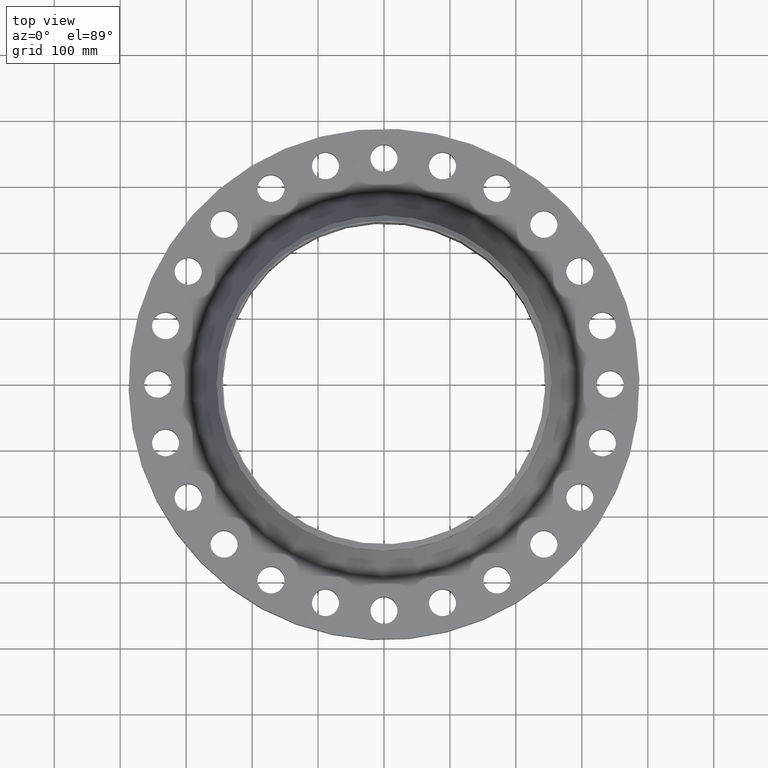
[diagram: clean part render]
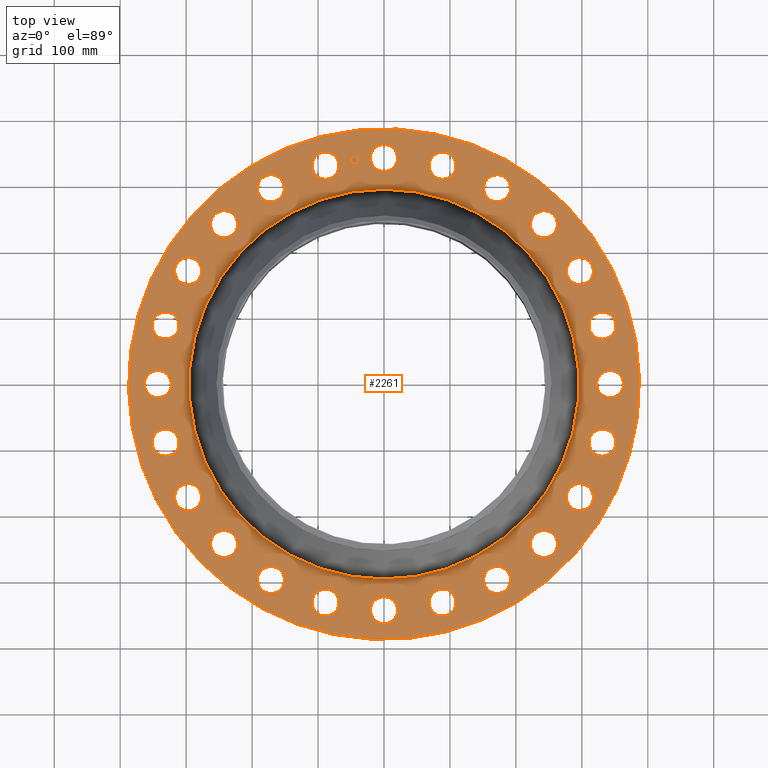
[diagram: same view with one face highlighted and labeled with its STEP entity id]
A machine part, top view. The second image highlights one B-rep face of the part: STEP entity #2261.
In plain terms, the highlighted planar face has unit normal (0, 0, -1).
Its self-contained STEP definition (entity closure, byte-faithful):
#65=AXIS2_PLACEMENT_3D('Circle Axis2P3D',#63,#64,$) ;
#82=AXIS2_PLACEMENT_3D('Circle Axis2P3D',#80,#81,$) ;
#115=AXIS2_PLACEMENT_3D('Circle Axis2P3D',#113,#114,$) ;
#139=AXIS2_PLACEMENT_3D('Circle Axis2P3D',#137,#138,$) ;
#156=AXIS2_PLACEMENT_3D('Circle Axis2P3D',#154,#155,$) ;
#191=AXIS2_PLACEMENT_3D('Circle Axis2P3D',#189,#190,$) ;
#934=AXIS2_PLACEMENT_3D('Circle Axis2P3D',#932,#933,$) ;
#946=AXIS2_PLACEMENT_3D('Circle Axis2P3D',#944,#945,$) ;
#977=AXIS2_PLACEMENT_3D('Circle Axis2P3D',#975,#976,$) ;
#989=AXIS2_PLACEMENT_3D('Circle Axis2P3D',#987,#988,$) ;
#1020=AXIS2_PLACEMENT_3D('Circle Axis2P3D',#1018,#1019,$) ;
#1032=AXIS2_PLACEMENT_3D('Circle Axis2P3D',#1030,#1031,$) ;
#1063=AXIS2_PLACEMENT_3D('Circle Axis2P3D',#1061,#1062,$) ;
#1075=AXIS2_PLACEMENT_3D('Circle Axis2P3D',#1073,#1074,$) ;
#1106=AXIS2_PLACEMENT_3D('Circle Axis2P3D',#1104,#1105,$) ;
#1118=AXIS2_PLACEMENT_3D('Circle Axis2P3D',#1116,#1117,$) ;
#1149=AXIS2_PLACEMENT_3D('Circle Axis2P3D',#1147,#1148,$) ;
#1161=AXIS2_PLACEMENT_3D('Circle Axis2P3D',#1159,#1160,$) ;
#1192=AXIS2_PLACEMENT_3D('Circle Axis2P3D',#1190,#1191,$) ;
#1204=AXIS2_PLACEMENT_3D('Circle Axis2P3D',#1202,#1203,$) ;
#1235=AXIS2_PLACEMENT_3D('Circle Axis2P3D',#1233,#1234,$) ;
#1247=AXIS2_PLACEMENT_3D('Circle Axis2P3D',#1245,#1246,$) ;
#1278=AXIS2_PLACEMENT_3D('Circle Axis2P3D',#1276,#1277,$) ;
#1290=AXIS2_PLACEMENT_3D('Circle Axis2P3D',#1288,#1289,$) ;
#1321=AXIS2_PLACEMENT_3D('Circle Axis2P3D',#1319,#1320,$) ;
#1333=AXIS2_PLACEMENT_3D('Circle Axis2P3D',#1331,#1332,$) ;
#1364=AXIS2_PLACEMENT_3D('Circle Axis2P3D',#1362,#1363,$) ;
#1376=AXIS2_PLACEMENT_3D('Circle Axis2P3D',#1374,#1375,$) ;
#1407=AXIS2_PLACEMENT_3D('Circle Axis2P3D',#1405,#1406,$) ;
#1419=AXIS2_PLACEMENT_3D('Circle Axis2P3D',#1417,#1418,$) ;
#1450=AXIS2_PLACEMENT_3D('Circle Axis2P3D',#1448,#1449,$) ;
#1462=AXIS2_PLACEMENT_3D('Circle Axis2P3D',#1460,#1461,$) ;
#1493=AXIS2_PLACEMENT_3D('Circle Axis2P3D',#1491,#1492,$) ;
#1505=AXIS2_PLACEMENT_3D('Circle Axis2P3D',#1503,#1504,$) ;
#1536=AXIS2_PLACEMENT_3D('Circle Axis2P3D',#1534,#1535,$) ;
#1548=AXIS2_PLACEMENT_3D('Circle Axis2P3D',#1546,#1547,$) ;
#1579=AXIS2_PLACEMENT_3D('Circle Axis2P3D',#1577,#1578,$) ;
#1591=AXIS2_PLACEMENT_3D('Circle Axis2P3D',#1589,#1590,$) ;
#1622=AXIS2_PLACEMENT_3D('Circle Axis2P3D',#1620,#1621,$) ;
#1634=AXIS2_PLACEMENT_3D('Circle Axis2P3D',#1632,#1633,$) ;
#1665=AXIS2_PLACEMENT_3D('Circle Axis2P3D',#1663,#1664,$) ;
#1677=AXIS2_PLACEMENT_3D('Circle Axis2P3D',#1675,#1676,$) ;
#1708=AXIS2_PLACEMENT_3D('Circle Axis2P3D',#1706,#1707,$) ;
#1720=AXIS2_PLACEMENT_3D('Circle Axis2P3D',#1718,#1719,$) ;
#1751=AXIS2_PLACEMENT_3D('Circle Axis2P3D',#1749,#1750,$) ;
#1763=AXIS2_PLACEMENT_3D('Circle Axis2P3D',#1761,#1762,$) ;
#1794=AXIS2_PLACEMENT_3D('Circle Axis2P3D',#1792,#1793,$) ;
#1806=AXIS2_PLACEMENT_3D('Circle Axis2P3D',#1804,#1805,$) ;
#1837=AXIS2_PLACEMENT_3D('Circle Axis2P3D',#1835,#1836,$) ;
#1849=AXIS2_PLACEMENT_3D('Circle Axis2P3D',#1847,#1848,$) ;
#1880=AXIS2_PLACEMENT_3D('Circle Axis2P3D',#1878,#1879,$) ;
#1892=AXIS2_PLACEMENT_3D('Circle Axis2P3D',#1890,#1891,$) ;
#2137=AXIS2_PLACEMENT_3D('Plane Axis2P3D',#2134,#2135,#2136) ;
#2245=AXIS2_PLACEMENT_3D('Circle Axis2P3D',#2243,#2244,$) ;
#2254=AXIS2_PLACEMENT_3D('Circle Axis2P3D',#2252,#2253,$) ;
#46=CARTESIAN_POINT('Vertex',(-0.710841875134,13.8883346863,2.75000000001)) ;
#60=CARTESIAN_POINT('Vertex',(0.710841875134,13.1116653138,2.75000000001)) ;
#63=CARTESIAN_POINT('Axis2P3D Location',(0.,13.5000000001,2.75000000001)) ;
#80=CARTESIAN_POINT('Axis2P3D Location',(0.,13.5000000001,2.75000000001)) ;
#110=CARTESIAN_POINT('Vertex',(-7.31123946374,-13.3831340689,2.75000000001)) ;
#113=CARTESIAN_POINT('Axis2P3D Location',(0.,0.,2.75000000001)) ;
#117=CARTESIAN_POINT('Vertex',(7.31123946374,13.3831340689,2.75000000001)) ;
#137=CARTESIAN_POINT('Axis2P3D Location',(0.,0.,2.75000000001)) ;
#154=CARTESIAN_POINT('Axis2P3D Location',(0.,0.,2.75000000001)) ;
#158=CARTESIAN_POINT('Vertex',(5.57908952298,10.2124548701,2.75000000001)) ;
#160=CARTESIAN_POINT('Vertex',(-5.57908952298,-10.2124548701,2.75000000001)) ;
#189=CARTESIAN_POINT('Axis2P3D Location',(0.,0.,2.75000000001)) ;
#922=CARTESIAN_POINT('Vertex',(-2.90794499598,-13.599080573,2.75000000001)) ;
#929=CARTESIAN_POINT('Vertex',(-4.08016922182,-12.4809167369,2.75000000001)) ;
#932=CARTESIAN_POINT('Axis2P3D Location',(-3.4940571089,-13.039998655,2.75000000001)) ;
#944=CARTESIAN_POINT('Axis2P3D Location',(-3.4940571089,-13.039998655,2.75000000001)) ;
#965=CARTESIAN_POINT('Vertex',(6.32856022122,12.3830715922,2.75000000001)) ;
#972=CARTESIAN_POINT('Vertex',(7.17143977883,10.9996143101,2.75000000001)) ;
#975=CARTESIAN_POINT('Axis2P3D Location',(6.75000000003,11.6913429511,2.75000000001)) ;
#987=CARTESIAN_POINT('Axis2P3D Location',(6.75000000003,11.6913429511,2.75000000001)) ;
#1008=CARTESIAN_POINT('Vertex',(-6.32856022122,-12.3830715922,2.75000000001)) ;
#1015=CARTESIAN_POINT('Vertex',(-7.17143977883,-10.9996143101,2.75000000001)) ;
#1018=CARTESIAN_POINT('Axis2P3D Location',(-6.75000000003,-11.6913429511,2.75000000001)) ;
#1030=CARTESIAN_POINT('Axis2P3D Location',(-6.75000000003,-11.6913429511,2.75000000001)) ;
#1051=CARTESIAN_POINT('Vertex',(9.31789452583,10.3231767463,2.75000000001)) ;
#1058=CARTESIAN_POINT('Vertex',(9.77398856628,8.76870634577,2.75000000001)) ;
#1061=CARTESIAN_POINT('Axis2P3D Location',(9.54594154606,9.54594154606,2.75000000001)) ;
#1073=CARTESIAN_POINT('Axis2P3D Location',(9.54594154606,9.54594154606,2.75000000001)) ;
#1094=CARTESIAN_POINT('Vertex',(-9.31789452583,-10.3231767463,2.75000000001)) ;
#1101=CARTESIAN_POINT('Vertex',(-9.77398856628,-8.76870634577,2.75000000001)) ;
#1104=CARTESIAN_POINT('Axis2P3D Location',(-9.54594154606,-9.54594154606,2.75000000001)) ;
#1116=CARTESIAN_POINT('Axis2P3D Location',(-9.54594154606,-9.54594154606,2.75000000001)) ;
#1137=CARTESIAN_POINT('Vertex',(11.6722297171,7.5597744651,2.75000000001)) ;
#1144=CARTESIAN_POINT('Vertex',(11.7104561852,5.94022553495,2.75000000001)) ;
#1147=CARTESIAN_POINT('Axis2P3D Location',(11.6913429511,6.75000000003,2.75000000001)) ;
#1159=CARTESIAN_POINT('Axis2P3D Location',(11.6913429511,6.75000000003,2.75000000001)) ;
#1180=CARTESIAN_POINT('Vertex',(-11.6722297171,-7.5597744651,2.75000000001)) ;
#1187=CARTESIAN_POINT('Vertex',(-11.7104561852,-5.94022553495,2.75000000001)) ;
#1190=CARTESIAN_POINT('Axis2P3D Location',(-11.6913429511,-6.75000000003,2.75000000001)) ;
#1202=CARTESIAN_POINT('Axis2P3D Location',(-11.6913429511,-6.75000000003,2.75000000001)) ;
#1223=CARTESIAN_POINT('Vertex',(13.2311217423,4.28118604718,2.75000000001)) ;
#1230=CARTESIAN_POINT('Vertex',(12.8488755676,2.70692817062,2.75000000001)) ;
#1233=CARTESIAN_POINT('Axis2P3D Location',(13.039998655,3.4940571089,2.75000000001)) ;
#1245=CARTESIAN_POINT('Axis2P3D Location',(13.039998655,3.4940571089,2.75000000001)) ;
#1266=CARTESIAN_POINT('Vertex',(-13.2311217423,-4.28118604718,2.75000000001)) ;
#1273=CARTESIAN_POINT('Vertex',(-12.8488755676,-2.70692817062,2.75000000001)) ;
#1276=CARTESIAN_POINT('Axis2P3D Location',(-13.039998655,-3.4940571089,2.75000000001)) ;
#1288=CARTESIAN_POINT('Axis2P3D Location',(-13.039998655,-3.4940571089,2.75000000001)) ;
#1309=CARTESIAN_POINT('Vertex',(13.8883346863,0.710841875134,2.75000000001)) ;
#1316=CARTESIAN_POINT('Vertex',(13.1116653138,-0.710841875134,2.75000000001)) ;
#1319=CARTESIAN_POINT('Axis2P3D Location',(13.5000000001,-1.41129328698E-015,2.75000000001)) ;
#1331=CARTESIAN_POINT('Axis2P3D Location',(13.5000000001,-1.41129328698E-015,2.75000000001)) ;
#1352=CARTESIAN_POINT('Vertex',(-13.8883346863,-0.710841875134,2.75000000001)) ;
#1359=CARTESIAN_POINT('Vertex',(-13.1116653138,0.710841875134,2.75000000001)) ;
#1362=CARTESIAN_POINT('Axis2P3D Location',(-13.5000000001,-2.47990976828E-015,2.75000000001)) ;
#1374=CARTESIAN_POINT('Axis2P3D Location',(-13.5000000001,-2.47990976828E-015,2.75000000001)) ;
#1395=CARTESIAN_POINT('Vertex',(13.599080573,-2.90794499598,2.75000000001)) ;
#1402=CARTESIAN_POINT('Vertex',(12.4809167369,-4.08016922182,2.75000000001)) ;
#1405=CARTESIAN_POINT('Axis2P3D Location',(13.039998655,-3.4940571089,2.75000000001)) ;
#1417=CARTESIAN_POINT('Axis2P3D Location',(13.039998655,-3.4940571089,2.75000000001)) ;
#1438=CARTESIAN_POINT('Vertex',(-13.599080573,2.90794499598,2.75000000001)) ;
#1445=CARTESIAN_POINT('Vertex',(-12.4809167369,4.08016922182,2.75000000001)) ;
#1448=CARTESIAN_POINT('Axis2P3D Location',(-13.039998655,3.4940571089,2.75000000001)) ;
#1460=CARTESIAN_POINT('Axis2P3D Location',(-13.039998655,3.4940571089,2.75000000001)) ;
#1481=CARTESIAN_POINT('Vertex',(12.3830715922,-6.32856022122,2.75000000001)) ;
#1488=CARTESIAN_POINT('Vertex',(10.9996143101,-7.17143977883,2.75000000001)) ;
#1491=CARTESIAN_POINT('Axis2P3D Location',(11.6913429511,-6.75000000003,2.75000000001)) ;
#1503=CARTESIAN_POINT('Axis2P3D Location',(11.6913429511,-6.75000000003,2.75000000001)) ;
#1524=CARTESIAN_POINT('Vertex',(-12.3830715922,6.32856022122,2.75000000001)) ;
#1531=CARTESIAN_POINT('Vertex',(-10.9996143101,7.17143977883,2.75000000001)) ;
#1534=CARTESIAN_POINT('Axis2P3D Location',(-11.6913429511,6.75000000003,2.75000000001)) ;
#1546=CARTESIAN_POINT('Axis2P3D Location',(-11.6913429511,6.75000000003,2.75000000001)) ;
#1567=CARTESIAN_POINT('Vertex',(10.3231767463,-9.31789452583,2.75000000001)) ;
#1574=CARTESIAN_POINT('Vertex',(8.76870634577,-9.77398856628,2.75000000001)) ;
#1577=CARTESIAN_POINT('Axis2P3D Location',(9.54594154606,-9.54594154606,2.75000000001)) ;
#1589=CARTESIAN_POINT('Axis2P3D Location',(9.54594154606,-9.54594154606,2.75000000001)) ;
#1610=CARTESIAN_POINT('Vertex',(-10.3231767463,9.31789452583,2.75000000001)) ;
#1617=CARTESIAN_POINT('Vertex',(-8.76870634577,9.77398856628,2.75000000001)) ;
#1620=CARTESIAN_POINT('Axis2P3D Location',(-9.54594154606,9.54594154606,2.75000000001)) ;
#1632=CARTESIAN_POINT('Axis2P3D Location',(-9.54594154606,9.54594154606,2.75000000001)) ;
#1653=CARTESIAN_POINT('Vertex',(7.5597744651,-11.6722297171,2.75000000001)) ;
#1660=CARTESIAN_POINT('Vertex',(5.94022553495,-11.7104561852,2.75000000001)) ;
#1663=CARTESIAN_POINT('Axis2P3D Location',(6.75000000003,-11.6913429511,2.75000000001)) ;
#1675=CARTESIAN_POINT('Axis2P3D Location',(6.75000000003,-11.6913429511,2.75000000001)) ;
#1696=CARTESIAN_POINT('Vertex',(-7.5597744651,11.6722297171,2.75000000001)) ;
#1703=CARTESIAN_POINT('Vertex',(-5.94022553495,11.7104561852,2.75000000001)) ;
#1706=CARTESIAN_POINT('Axis2P3D Location',(-6.75000000003,11.6913429511,2.75000000001)) ;
#1718=CARTESIAN_POINT('Axis2P3D Location',(-6.75000000003,11.6913429511,2.75000000001)) ;
#1739=CARTESIAN_POINT('Vertex',(4.28118604718,-13.2311217423,2.75000000001)) ;
#1746=CARTESIAN_POINT('Vertex',(2.70692817062,-12.8488755676,2.75000000001)) ;
#1749=CARTESIAN_POINT('Axis2P3D Location',(3.4940571089,-13.039998655,2.75000000001)) ;
#1761=CARTESIAN_POINT('Axis2P3D Location',(3.4940571089,-13.039998655,2.75000000001)) ;
#1782=CARTESIAN_POINT('Vertex',(-4.28118604718,13.2311217423,2.75000000001)) ;
#1789=CARTESIAN_POINT('Vertex',(-2.70692817062,12.8488755676,2.75000000001)) ;
#1792=CARTESIAN_POINT('Axis2P3D Location',(-3.4940571089,13.039998655,2.75000000001)) ;
#1804=CARTESIAN_POINT('Axis2P3D Location',(-3.4940571089,13.039998655,2.75000000001)) ;
#1825=CARTESIAN_POINT('Vertex',(0.710841875134,-13.8883346863,2.75000000001)) ;
#1832=CARTESIAN_POINT('Vertex',(-0.710841875134,-13.1116653138,2.75000000001)) ;
#1835=CARTESIAN_POINT('Axis2P3D Location',(1.65327317886E-015,-13.5000000001,2.75000000001)) ;
#1847=CARTESIAN_POINT('Axis2P3D Location',(1.65327317886E-015,-13.5000000001,2.75000000001)) ;
#1868=CARTESIAN_POINT('Vertex',(2.90794499598,13.599080573,2.75000000001)) ;
#1875=CARTESIAN_POINT('Vertex',(4.08016922182,12.4809167369,2.75000000001)) ;
#1878=CARTESIAN_POINT('Axis2P3D Location',(3.4940571089,13.039998655,2.75000000001)) ;
#1890=CARTESIAN_POINT('Axis2P3D Location',(3.4940571089,13.039998655,2.75000000001)) ;
#2134=CARTESIAN_POINT('Axis2P3D Location',(0.,15.2500000001,2.75000000001)) ;
#2243=CARTESIAN_POINT('Axis2P3D Location',(-1.76210359498,13.3845056286,2.75000000001)) ;
#2247=CARTESIAN_POINT('Vertex',(-2.00748619817,13.352200396,2.75000000001)) ;
#2249=CARTESIAN_POINT('Vertex',(-1.51672099179,13.4168108612,2.75000000001)) ;
#2252=CARTESIAN_POINT('Axis2P3D Location',(-1.76210359498,13.3845056286,2.75000000001)) ;
#64=DIRECTION('Axis2P3D Direction',(0.,-0.,-0.0393700787402)) ;
#81=DIRECTION('Axis2P3D Direction',(0.,-0.,-0.0393700787402)) ;
#114=DIRECTION('Axis2P3D Direction',(0.,0.,-0.0393700787402)) ;
#138=DIRECTION('Axis2P3D Direction',(0.,0.,-0.0393700787402)) ;
#155=DIRECTION('Axis2P3D Direction',(0.,0.,-0.0393700787402)) ;
#190=DIRECTION('Axis2P3D Direction',(0.,0.,-0.0393700787402)) ;
#933=DIRECTION('Axis2P3D Direction',(0.,0.,-0.0393700787402)) ;
#945=DIRECTION('Axis2P3D Direction',(0.,0.,-0.0393700787402)) ;
#976=DIRECTION('Axis2P3D Direction',(0.,-0.,-0.0393700787402)) ;
#988=DIRECTION('Axis2P3D Direction',(0.,-0.,-0.0393700787402)) ;
#1019=DIRECTION('Axis2P3D Direction',(0.,0.,-0.0393700787402)) ;
#1031=DIRECTION('Axis2P3D Direction',(0.,0.,-0.0393700787402)) ;
#1062=DIRECTION('Axis2P3D Direction',(0.,-0.,-0.0393700787402)) ;
#1074=DIRECTION('Axis2P3D Direction',(0.,-0.,-0.0393700787402)) ;
#1105=DIRECTION('Axis2P3D Direction',(0.,0.,-0.0393700787402)) ;
#1117=DIRECTION('Axis2P3D Direction',(0.,0.,-0.0393700787402)) ;
#1148=DIRECTION('Axis2P3D Direction',(0.,-0.,-0.0393700787402)) ;
#1160=DIRECTION('Axis2P3D Direction',(0.,-0.,-0.0393700787402)) ;
#1191=DIRECTION('Axis2P3D Direction',(0.,0.,-0.0393700787402)) ;
#1203=DIRECTION('Axis2P3D Direction',(0.,0.,-0.0393700787402)) ;
#1234=DIRECTION('Axis2P3D Direction',(0.,-0.,-0.0393700787402)) ;
#1246=DIRECTION('Axis2P3D Direction',(0.,-0.,-0.0393700787402)) ;
#1277=DIRECTION('Axis2P3D Direction',(0.,0.,-0.0393700787402)) ;
#1289=DIRECTION('Axis2P3D Direction',(0.,0.,-0.0393700787402)) ;
#1320=DIRECTION('Axis2P3D Direction',(0.,-0.,-0.0393700787402)) ;
#1332=DIRECTION('Axis2P3D Direction',(0.,-0.,-0.0393700787402)) ;
#1363=DIRECTION('Axis2P3D Direction',(0.,0.,-0.0393700787402)) ;
#1375=DIRECTION('Axis2P3D Direction',(0.,0.,-0.0393700787402)) ;
#1406=DIRECTION('Axis2P3D Direction',(-0.,0.,-0.0393700787402)) ;
#1418=DIRECTION('Axis2P3D Direction',(-0.,0.,-0.0393700787402)) ;
#1449=DIRECTION('Axis2P3D Direction',(0.,0.,-0.0393700787402)) ;
#1461=DIRECTION('Axis2P3D Direction',(0.,0.,-0.0393700787402)) ;
#1492=DIRECTION('Axis2P3D Direction',(-0.,0.,-0.0393700787402)) ;
#1504=DIRECTION('Axis2P3D Direction',(-0.,0.,-0.0393700787402)) ;
#1535=DIRECTION('Axis2P3D Direction',(0.,0.,-0.0393700787402)) ;
#1547=DIRECTION('Axis2P3D Direction',(0.,0.,-0.0393700787402)) ;
#1578=DIRECTION('Axis2P3D Direction',(-0.,0.,-0.0393700787402)) ;
#1590=DIRECTION('Axis2P3D Direction',(-0.,0.,-0.0393700787402)) ;
#1621=DIRECTION('Axis2P3D Direction',(0.,0.,-0.0393700787402)) ;
#1633=DIRECTION('Axis2P3D Direction',(0.,0.,-0.0393700787402)) ;
#1664=DIRECTION('Axis2P3D Direction',(-0.,0.,-0.0393700787402)) ;
#1676=DIRECTION('Axis2P3D Direction',(-0.,0.,-0.0393700787402)) ;
#1707=DIRECTION('Axis2P3D Direction',(0.,0.,-0.0393700787402)) ;
#1719=DIRECTION('Axis2P3D Direction',(0.,0.,-0.0393700787402)) ;
#1750=DIRECTION('Axis2P3D Direction',(-0.,0.,-0.0393700787402)) ;
#1762=DIRECTION('Axis2P3D Direction',(-0.,0.,-0.0393700787402)) ;
#1793=DIRECTION('Axis2P3D Direction',(0.,0.,-0.0393700787402)) ;
#1805=DIRECTION('Axis2P3D Direction',(0.,0.,-0.0393700787402)) ;
#1836=DIRECTION('Axis2P3D Direction',(-0.,0.,-0.0393700787402)) ;
#1848=DIRECTION('Axis2P3D Direction',(-0.,0.,-0.0393700787402)) ;
#1879=DIRECTION('Axis2P3D Direction',(0.,-0.,-0.0393700787402)) ;
#1891=DIRECTION('Axis2P3D Direction',(0.,-0.,-0.0393700787402)) ;
#2135=DIRECTION('Axis2P3D Direction',(0.,0.,-0.0393700787402)) ;
#2136=DIRECTION('Axis2P3D XDirection',(0.0393700787402,0.,0.)) ;
#2244=DIRECTION('Axis2P3D Direction',(0.,0.,-0.0393700787402)) ;
#2253=DIRECTION('Axis2P3D Direction',(0.,0.,-0.0393700787402)) ;
#2140=ORIENTED_EDGE('',*,*,#141,.F.) ;
#2141=ORIENTED_EDGE('',*,*,#119,.F.) ;
#2144=ORIENTED_EDGE('',*,*,#67,.T.) ;
#2145=ORIENTED_EDGE('',*,*,#84,.T.) ;
#2148=ORIENTED_EDGE('',*,*,#193,.T.) ;
#2149=ORIENTED_EDGE('',*,*,#162,.T.) ;
#2152=ORIENTED_EDGE('',*,*,#1894,.T.) ;
#2153=ORIENTED_EDGE('',*,*,#1882,.T.) ;
#2156=ORIENTED_EDGE('',*,*,#991,.T.) ;
#2157=ORIENTED_EDGE('',*,*,#979,.T.) ;
#2160=ORIENTED_EDGE('',*,*,#1077,.T.) ;
#2161=ORIENTED_EDGE('',*,*,#1065,.T.) ;
#2164=ORIENTED_EDGE('',*,*,#1163,.T.) ;
#2165=ORIENTED_EDGE('',*,*,#1151,.T.) ;
#2168=ORIENTED_EDGE('',*,*,#1249,.T.) ;
#2169=ORIENTED_EDGE('',*,*,#1237,.T.) ;
#2172=ORIENTED_EDGE('',*,*,#1335,.T.) ;
#2173=ORIENTED_EDGE('',*,*,#1323,.T.) ;
#2176=ORIENTED_EDGE('',*,*,#1421,.T.) ;
#2177=ORIENTED_EDGE('',*,*,#1409,.T.) ;
#2180=ORIENTED_EDGE('',*,*,#1507,.T.) ;
#2181=ORIENTED_EDGE('',*,*,#1495,.T.) ;
#2184=ORIENTED_EDGE('',*,*,#1593,.T.) ;
#2185=ORIENTED_EDGE('',*,*,#1581,.T.) ;
#2188=ORIENTED_EDGE('',*,*,#1679,.T.) ;
#2189=ORIENTED_EDGE('',*,*,#1667,.T.) ;
#2192=ORIENTED_EDGE('',*,*,#1765,.T.) ;
#2193=ORIENTED_EDGE('',*,*,#1753,.T.) ;
#2196=ORIENTED_EDGE('',*,*,#1851,.T.) ;
#2197=ORIENTED_EDGE('',*,*,#1839,.T.) ;
#2200=ORIENTED_EDGE('',*,*,#948,.T.) ;
#2201=ORIENTED_EDGE('',*,*,#936,.T.) ;
#2204=ORIENTED_EDGE('',*,*,#1034,.T.) ;
#2205=ORIENTED_EDGE('',*,*,#1022,.T.) ;
#2208=ORIENTED_EDGE('',*,*,#1120,.T.) ;
#2209=ORIENTED_EDGE('',*,*,#1108,.T.) ;
#2212=ORIENTED_EDGE('',*,*,#1206,.T.) ;
#2213=ORIENTED_EDGE('',*,*,#1194,.T.) ;
#2216=ORIENTED_EDGE('',*,*,#1292,.T.) ;
#2217=ORIENTED_EDGE('',*,*,#1280,.T.) ;
#2220=ORIENTED_EDGE('',*,*,#1378,.T.) ;
#2221=ORIENTED_EDGE('',*,*,#1366,.T.) ;
#2224=ORIENTED_EDGE('',*,*,#1464,.T.) ;
#2225=ORIENTED_EDGE('',*,*,#1452,.T.) ;
#2228=ORIENTED_EDGE('',*,*,#1550,.T.) ;
#2229=ORIENTED_EDGE('',*,*,#1538,.T.) ;
#2232=ORIENTED_EDGE('',*,*,#1636,.T.) ;
#2233=ORIENTED_EDGE('',*,*,#1624,.T.) ;
#2236=ORIENTED_EDGE('',*,*,#1722,.T.) ;
#2237=ORIENTED_EDGE('',*,*,#1710,.T.) ;
#2240=ORIENTED_EDGE('',*,*,#1808,.T.) ;
#2241=ORIENTED_EDGE('',*,*,#1796,.T.) ;
#2258=ORIENTED_EDGE('',*,*,#2251,.T.) ;
#2259=ORIENTED_EDGE('',*,*,#2256,.T.) ;
#2146=FACE_BOUND('',#2143,.T.) ;
#2150=FACE_BOUND('',#2147,.T.) ;
#2154=FACE_BOUND('',#2151,.T.) ;
#2158=FACE_BOUND('',#2155,.T.) ;
#2162=FACE_BOUND('',#2159,.T.) ;
#2166=FACE_BOUND('',#2163,.T.) ;
#2170=FACE_BOUND('',#2167,.T.) ;
#2174=FACE_BOUND('',#2171,.T.) ;
#2178=FACE_BOUND('',#2175,.T.) ;
#2182=FACE_BOUND('',#2179,.T.) ;
#2186=FACE_BOUND('',#2183,.T.) ;
#2190=FACE_BOUND('',#2187,.T.) ;
#2194=FACE_BOUND('',#2191,.T.) ;
#2198=FACE_BOUND('',#2195,.T.) ;
#2202=FACE_BOUND('',#2199,.T.) ;
#2206=FACE_BOUND('',#2203,.T.) ;
#2210=FACE_BOUND('',#2207,.T.) ;
#2214=FACE_BOUND('',#2211,.T.) ;
#2218=FACE_BOUND('',#2215,.T.) ;
#2222=FACE_BOUND('',#2219,.T.) ;
#2226=FACE_BOUND('',#2223,.T.) ;
#2230=FACE_BOUND('',#2227,.T.) ;
#2234=FACE_BOUND('',#2231,.T.) ;
#2238=FACE_BOUND('',#2235,.T.) ;
#2242=FACE_BOUND('',#2239,.T.) ;
#2260=FACE_BOUND('',#2257,.T.) ;
#2261=ADVANCED_FACE('PartBody',(#2142,#2146,#2150,#2154,#2158,#2162,#2166,#2170,#2174,#2178,#2182,#2186,#2190,#2194,#2198,#2202,#2206,#2210,#2214,#2218,#2222,#2226,#2230,#2234,#2238,#2242,#2260),#2138,.F.) ;
#66=CIRCLE('generated circle',#65,0.810000000003) ;
#83=CIRCLE('generated circle',#82,0.810000000003) ;
#116=CIRCLE('generated circle',#115,15.2500000001) ;
#140=CIRCLE('generated circle',#139,15.2500000001) ;
#157=CIRCLE('generated circle',#156,11.6370303076) ;
#192=CIRCLE('generated circle',#191,11.6370303076) ;
#935=CIRCLE('generated circle',#934,0.810000000003) ;
#947=CIRCLE('generated circle',#946,0.810000000003) ;
#978=CIRCLE('generated circle',#977,0.810000000003) ;
#990=CIRCLE('generated circle',#989,0.810000000003) ;
#1021=CIRCLE('generated circle',#1020,0.810000000003) ;
#1033=CIRCLE('generated circle',#1032,0.810000000003) ;
#1064=CIRCLE('generated circle',#1063,0.810000000003) ;
#1076=CIRCLE('generated circle',#1075,0.810000000003) ;
#1107=CIRCLE('generated circle',#1106,0.810000000003) ;
#1119=CIRCLE('generated circle',#1118,0.810000000003) ;
#1150=CIRCLE('generated circle',#1149,0.810000000003) ;
#1162=CIRCLE('generated circle',#1161,0.810000000003) ;
#1193=CIRCLE('generated circle',#1192,0.810000000003) ;
#1205=CIRCLE('generated circle',#1204,0.810000000003) ;
#1236=CIRCLE('generated circle',#1235,0.810000000003) ;
#1248=CIRCLE('generated circle',#1247,0.810000000003) ;
#1279=CIRCLE('generated circle',#1278,0.810000000003) ;
#1291=CIRCLE('generated circle',#1290,0.810000000003) ;
#1322=CIRCLE('generated circle',#1321,0.810000000003) ;
#1334=CIRCLE('generated circle',#1333,0.810000000003) ;
#1365=CIRCLE('generated circle',#1364,0.810000000003) ;
#1377=CIRCLE('generated circle',#1376,0.810000000003) ;
#1408=CIRCLE('generated circle',#1407,0.810000000003) ;
#1420=CIRCLE('generated circle',#1419,0.810000000003) ;
#1451=CIRCLE('generated circle',#1450,0.810000000003) ;
#1463=CIRCLE('generated circle',#1462,0.810000000003) ;
#1494=CIRCLE('generated circle',#1493,0.810000000003) ;
#1506=CIRCLE('generated circle',#1505,0.810000000003) ;
#1537=CIRCLE('generated circle',#1536,0.810000000003) ;
#1549=CIRCLE('generated circle',#1548,0.810000000003) ;
#1580=CIRCLE('generated circle',#1579,0.810000000003) ;
#1592=CIRCLE('generated circle',#1591,0.810000000003) ;
#1623=CIRCLE('generated circle',#1622,0.810000000003) ;
#1635=CIRCLE('generated circle',#1634,0.810000000003) ;
#1666=CIRCLE('generated circle',#1665,0.810000000003) ;
#1678=CIRCLE('generated circle',#1677,0.810000000003) ;
#1709=CIRCLE('generated circle',#1708,0.810000000003) ;
#1721=CIRCLE('generated circle',#1720,0.810000000003) ;
#1752=CIRCLE('generated circle',#1751,0.810000000003) ;
#1764=CIRCLE('generated circle',#1763,0.810000000003) ;
#1795=CIRCLE('generated circle',#1794,0.810000000003) ;
#1807=CIRCLE('generated circle',#1806,0.810000000003) ;
#1838=CIRCLE('generated circle',#1837,0.810000000003) ;
#1850=CIRCLE('generated circle',#1849,0.810000000003) ;
#1881=CIRCLE('generated circle',#1880,0.810000000003) ;
#1893=CIRCLE('generated circle',#1892,0.810000000003) ;
#2246=CIRCLE('generated circle',#2245,0.247500000001) ;
#2255=CIRCLE('generated circle',#2254,0.247500000001) ;
#67=EDGE_CURVE('',#47,#61,#66,.T.) ;
#84=EDGE_CURVE('',#61,#47,#83,.T.) ;
#119=EDGE_CURVE('',#111,#118,#116,.T.) ;
#141=EDGE_CURVE('',#118,#111,#140,.T.) ;
#162=EDGE_CURVE('',#159,#161,#157,.T.) ;
#193=EDGE_CURVE('',#161,#159,#192,.T.) ;
#936=EDGE_CURVE('',#923,#930,#935,.T.) ;
#948=EDGE_CURVE('',#930,#923,#947,.T.) ;
#979=EDGE_CURVE('',#966,#973,#978,.T.) ;
#991=EDGE_CURVE('',#973,#966,#990,.T.) ;
#1022=EDGE_CURVE('',#1009,#1016,#1021,.T.) ;
#1034=EDGE_CURVE('',#1016,#1009,#1033,.T.) ;
#1065=EDGE_CURVE('',#1052,#1059,#1064,.T.) ;
#1077=EDGE_CURVE('',#1059,#1052,#1076,.T.) ;
#1108=EDGE_CURVE('',#1095,#1102,#1107,.T.) ;
#1120=EDGE_CURVE('',#1102,#1095,#1119,.T.) ;
#1151=EDGE_CURVE('',#1138,#1145,#1150,.T.) ;
#1163=EDGE_CURVE('',#1145,#1138,#1162,.T.) ;
#1194=EDGE_CURVE('',#1181,#1188,#1193,.T.) ;
#1206=EDGE_CURVE('',#1188,#1181,#1205,.T.) ;
#1237=EDGE_CURVE('',#1224,#1231,#1236,.T.) ;
#1249=EDGE_CURVE('',#1231,#1224,#1248,.T.) ;
#1280=EDGE_CURVE('',#1267,#1274,#1279,.T.) ;
#1292=EDGE_CURVE('',#1274,#1267,#1291,.T.) ;
#1323=EDGE_CURVE('',#1310,#1317,#1322,.T.) ;
#1335=EDGE_CURVE('',#1317,#1310,#1334,.T.) ;
#1366=EDGE_CURVE('',#1353,#1360,#1365,.T.) ;
#1378=EDGE_CURVE('',#1360,#1353,#1377,.T.) ;
#1409=EDGE_CURVE('',#1396,#1403,#1408,.T.) ;
#1421=EDGE_CURVE('',#1403,#1396,#1420,.T.) ;
#1452=EDGE_CURVE('',#1439,#1446,#1451,.T.) ;
#1464=EDGE_CURVE('',#1446,#1439,#1463,.T.) ;
#1495=EDGE_CURVE('',#1482,#1489,#1494,.T.) ;
#1507=EDGE_CURVE('',#1489,#1482,#1506,.T.) ;
#1538=EDGE_CURVE('',#1525,#1532,#1537,.T.) ;
#1550=EDGE_CURVE('',#1532,#1525,#1549,.T.) ;
#1581=EDGE_CURVE('',#1568,#1575,#1580,.T.) ;
#1593=EDGE_CURVE('',#1575,#1568,#1592,.T.) ;
#1624=EDGE_CURVE('',#1611,#1618,#1623,.T.) ;
#1636=EDGE_CURVE('',#1618,#1611,#1635,.T.) ;
#1667=EDGE_CURVE('',#1654,#1661,#1666,.T.) ;
#1679=EDGE_CURVE('',#1661,#1654,#1678,.T.) ;
#1710=EDGE_CURVE('',#1697,#1704,#1709,.T.) ;
#1722=EDGE_CURVE('',#1704,#1697,#1721,.T.) ;
#1753=EDGE_CURVE('',#1740,#1747,#1752,.T.) ;
#1765=EDGE_CURVE('',#1747,#1740,#1764,.T.) ;
#1796=EDGE_CURVE('',#1783,#1790,#1795,.T.) ;
#1808=EDGE_CURVE('',#1790,#1783,#1807,.T.) ;
#1839=EDGE_CURVE('',#1826,#1833,#1838,.T.) ;
#1851=EDGE_CURVE('',#1833,#1826,#1850,.T.) ;
#1882=EDGE_CURVE('',#1869,#1876,#1881,.T.) ;
#1894=EDGE_CURVE('',#1876,#1869,#1893,.T.) ;
#2251=EDGE_CURVE('',#2248,#2250,#2246,.T.) ;
#2256=EDGE_CURVE('',#2250,#2248,#2255,.T.) ;
#2139=EDGE_LOOP('',(#2140,#2141)) ;
#2143=EDGE_LOOP('',(#2144,#2145)) ;
#2147=EDGE_LOOP('',(#2148,#2149)) ;
#2151=EDGE_LOOP('',(#2152,#2153)) ;
#2155=EDGE_LOOP('',(#2156,#2157)) ;
#2159=EDGE_LOOP('',(#2160,#2161)) ;
#2163=EDGE_LOOP('',(#2164,#2165)) ;
#2167=EDGE_LOOP('',(#2168,#2169)) ;
#2171=EDGE_LOOP('',(#2172,#2173)) ;
#2175=EDGE_LOOP('',(#2176,#2177)) ;
#2179=EDGE_LOOP('',(#2180,#2181)) ;
#2183=EDGE_LOOP('',(#2184,#2185)) ;
#2187=EDGE_LOOP('',(#2188,#2189)) ;
#2191=EDGE_LOOP('',(#2192,#2193)) ;
#2195=EDGE_LOOP('',(#2196,#2197)) ;
#2199=EDGE_LOOP('',(#2200,#2201)) ;
#2203=EDGE_LOOP('',(#2204,#2205)) ;
#2207=EDGE_LOOP('',(#2208,#2209)) ;
#2211=EDGE_LOOP('',(#2212,#2213)) ;
#2215=EDGE_LOOP('',(#2216,#2217)) ;
#2219=EDGE_LOOP('',(#2220,#2221)) ;
#2223=EDGE_LOOP('',(#2224,#2225)) ;
#2227=EDGE_LOOP('',(#2228,#2229)) ;
#2231=EDGE_LOOP('',(#2232,#2233)) ;
#2235=EDGE_LOOP('',(#2236,#2237)) ;
#2239=EDGE_LOOP('',(#2240,#2241)) ;
#2257=EDGE_LOOP('',(#2258,#2259)) ;
#2142=FACE_OUTER_BOUND('',#2139,.T.) ;
#2138=PLANE('',#2137) ;
#47=VERTEX_POINT('',#46) ;
#61=VERTEX_POINT('',#60) ;
#111=VERTEX_POINT('',#110) ;
#118=VERTEX_POINT('',#117) ;
#159=VERTEX_POINT('',#158) ;
#161=VERTEX_POINT('',#160) ;
#923=VERTEX_POINT('',#922) ;
#930=VERTEX_POINT('',#929) ;
#966=VERTEX_POINT('',#965) ;
#973=VERTEX_POINT('',#972) ;
#1009=VERTEX_POINT('',#1008) ;
#1016=VERTEX_POINT('',#1015) ;
#1052=VERTEX_POINT('',#1051) ;
#1059=VERTEX_POINT('',#1058) ;
#1095=VERTEX_POINT('',#1094) ;
#1102=VERTEX_POINT('',#1101) ;
#1138=VERTEX_POINT('',#1137) ;
#1145=VERTEX_POINT('',#1144) ;
#1181=VERTEX_POINT('',#1180) ;
#1188=VERTEX_POINT('',#1187) ;
#1224=VERTEX_POINT('',#1223) ;
#1231=VERTEX_POINT('',#1230) ;
#1267=VERTEX_POINT('',#1266) ;
#1274=VERTEX_POINT('',#1273) ;
#1310=VERTEX_POINT('',#1309) ;
#1317=VERTEX_POINT('',#1316) ;
#1353=VERTEX_POINT('',#1352) ;
#1360=VERTEX_POINT('',#1359) ;
#1396=VERTEX_POINT('',#1395) ;
#1403=VERTEX_POINT('',#1402) ;
#1439=VERTEX_POINT('',#1438) ;
#1446=VERTEX_POINT('',#1445) ;
#1482=VERTEX_POINT('',#1481) ;
#1489=VERTEX_POINT('',#1488) ;
#1525=VERTEX_POINT('',#1524) ;
#1532=VERTEX_POINT('',#1531) ;
#1568=VERTEX_POINT('',#1567) ;
#1575=VERTEX_POINT('',#1574) ;
#1611=VERTEX_POINT('',#1610) ;
#1618=VERTEX_POINT('',#1617) ;
#1654=VERTEX_POINT('',#1653) ;
#1661=VERTEX_POINT('',#1660) ;
#1697=VERTEX_POINT('',#1696) ;
#1704=VERTEX_POINT('',#1703) ;
#1740=VERTEX_POINT('',#1739) ;
#1747=VERTEX_POINT('',#1746) ;
#1783=VERTEX_POINT('',#1782) ;
#1790=VERTEX_POINT('',#1789) ;
#1826=VERTEX_POINT('',#1825) ;
#1833=VERTEX_POINT('',#1832) ;
#1869=VERTEX_POINT('',#1868) ;
#1876=VERTEX_POINT('',#1875) ;
#2248=VERTEX_POINT('',#2247) ;
#2250=VERTEX_POINT('',#2249) ;